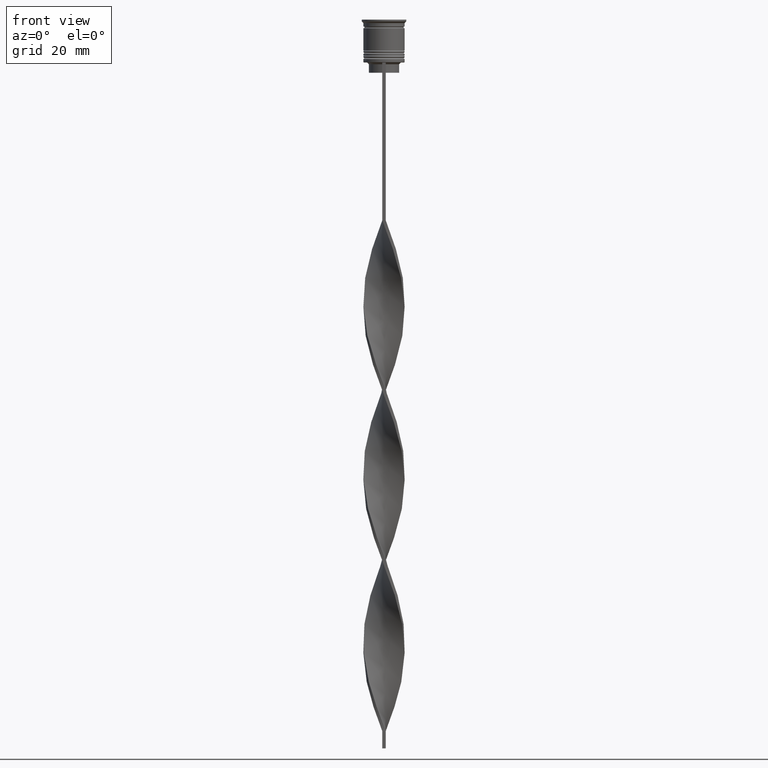
[diagram: clean part render]
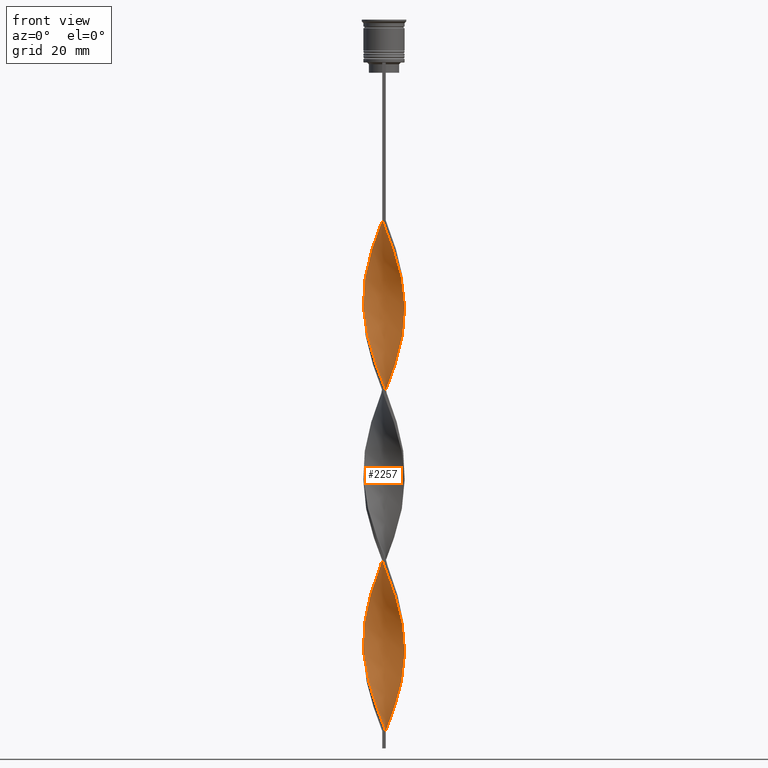
[diagram: same view with one face highlighted and labeled with its STEP entity id]
A machine part, front view. The second image highlights one B-rep face of the part: STEP entity #2257.
In plain terms, the highlighted face is a freeform B-spline surface patch.
Its self-contained STEP definition (entity closure, byte-faithful):
#17 = CARTESIAN_POINT ( 'NONE',  ( 6.015373881509670007, 0.6136281867224272490, -86.25490196078432348 ) ) ;
#31 = CARTESIAN_POINT ( 'NONE',  ( -4.114758515918087944, -4.430578386798787349, -194.3529411764705799 ) ) ;
#35 = CARTESIAN_POINT ( 'NONE',  ( 4.032016302638261607, 4.506007880724164139, -97.94117647058824616 ) ) ;
#53 = CARTESIAN_POINT ( 'NONE',  ( 2.236388528178716584, -5.617813528137047818, -165.1372549019608016 ) ) ;
#60 = CARTESIAN_POINT ( 'NONE',  ( -5.830837162583066835, -1.600812440396821801, -185.5882352941176237 ) ) ;
#76 = CARTESIAN_POINT ( 'NONE',  ( -1.055981877452178086, 5.953668176878986529, -59.96078431372549744 ) ) ;
#88 = CARTESIAN_POINT ( 'NONE',  ( -5.593848926018643475, 2.226848488981699070, -175.3627450980391984 ) ) ;
#102 = CARTESIAN_POINT ( 'NONE',  ( 1.593983656741372767, 5.805963839195126042, -204.5784313725490335 ) ) ;
#112 = CARTESIAN_POINT ( 'NONE',  ( -2.633686111825095377, 5.414212543332558525, -64.34313725490196134 ) ) ;
#118 = CARTESIAN_POINT ( 'NONE',  ( -3.135386787619623750, -5.170165585153852383, -150.5294117647058840 ) ) ;
#122 = CARTESIAN_POINT ( 'NONE',  ( 3.672669403269014143, -4.770901325147232974, -70.18627450980390847 ) ) ;
#123 = CARTESIAN_POINT ( 'NONE',  ( -6.025704593494046968, -0.5021420494578366922, -83.33333333333332860 ) ) ;
#137 = CARTESIAN_POINT ( 'NONE',  ( -6.025704593494046968, 0.5021420494578381355, -133.0000000000000000 ) ) ;
#144 = CARTESIAN_POINT ( 'NONE',  ( 2.733484409399328019, -5.364518895816363653, -67.26470588235292780 ) ) ;
#157 = CARTESIAN_POINT ( 'NONE',  ( -3.230580290619939898, -5.111224263495680376, -97.94117647058824616 ) ) ;
#162 = CARTESIAN_POINT ( 'NONE',  ( 5.089420681871065888, 3.216799204635418352, -93.55882352941176805 ) ) ;
#163 = CARTESIAN_POINT ( 'NONE',  ( -1.701213882420740120, -5.775454209519710780, -201.6568627450980387 ) ) ;
#169 = CARTESIAN_POINT ( 'NONE',  ( -0.4999999999999997780, 6.000000000000000000, -157.8333333333333144 ) ) ;
#176 = CARTESIAN_POINT ( 'NONE',  ( 5.634122364000872629, -2.122890762018906141, -178.2843137254901933 ) ) ;
#183 = CARTESIAN_POINT ( 'NONE',  ( -2.236388528178717472, -5.617813528137046930, -100.8627450980392126 ) ) ;
#190 = CARTESIAN_POINT ( 'NONE',  ( 4.411678320489673233, 4.097205681500676100, -195.8137254901960773 ) ) ;
#205 = CARTESIAN_POINT ( 'NONE',  ( -5.928270878038556013, -1.051477244927328192, -84.79411764705882604 ) ) ;
#209 = CARTESIAN_POINT ( 'NONE',  ( 1.701213882420740120, -5.775454209519710780, -163.6764705882352757 ) ) ;
#211 = CARTESIAN_POINT ( 'NONE',  ( -4.486786045491809816, -4.014816431915657624, -93.55882352941176805 ) ) ;
#218 = CARTESIAN_POINT ( 'NONE',  ( 4.114758515918086168, 4.430578386798788237, -144.6862745098039227 ) ) ;
#224 = CARTESIAN_POINT ( 'NONE',  ( 1.593983656741372767, 5.805963839195126042, -105.2450980392156765 ) ) ;
#238 = CARTESIAN_POINT ( 'NONE',  ( -2.131985436030568781, -5.658259501511265555, -153.4509803921568789 ) ) ;
#240 = CARTESIAN_POINT ( 'NONE',  ( 4.032016302638258942, -4.506007880724165027, -118.3921568627451109 ) ) ;
#266 = CARTESIAN_POINT ( 'NONE',  ( 4.791340338341086635, -3.688403482277189394, -121.3137254901960773 ) ) ;
#282 = CARTESIAN_POINT ( 'NONE',  ( 2.633686111825095377, 5.414212543332558525, -102.3235294117646959 ) ) ;
#284 = CARTESIAN_POINT ( 'NONE',  ( 5.928270878038556901, 1.051477244927326415, -134.4607843137254974 ) ) ;
#298 = CARTESIAN_POINT ( 'NONE',  ( 1.055981877452177642, 5.953668176878988305, -106.7058823529412024 ) ) ;
#323 = CARTESIAN_POINT ( 'NONE',  ( 0.6110105570574714262, -5.989713357011694939, -61.42156862745097357 ) ) ;
#338 = CARTESIAN_POINT ( 'NONE',  ( 5.593848926018643475, 2.226848488981698626, -90.63725490196078738 ) ) ;
#344 = CARTESIAN_POINT ( 'NONE',  ( -6.025704593494046968, -0.5021420494578366922, -182.6666666666666856 ) ) ;
#358 = CARTESIAN_POINT ( 'NONE',  ( 5.387501025401044252, 2.745194926993649975, -191.4313725490196134 ) ) ;
#363 = CARTESIAN_POINT ( 'NONE',  ( 3.135386787619625526, 5.170165585153850607, -100.8627450980392126 ) ) ;
#371 = VECTOR ( 'NONE', #3705, 1000.000000000000000 ) ;
#378 = CARTESIAN_POINT ( 'NONE',  ( -5.089420681871065000, 3.216799204635419240, -73.10784313725488914 ) ) ;
#386 = CARTESIAN_POINT ( 'NONE',  ( -0.4999999999999997780, -6.000000000000000000, -58.50000000000000000 ) ) ;
#387 = CARTESIAN_POINT ( 'NONE',  ( -4.791340338341087524, 3.688403482277190282, -170.9803921568627629 ) ) ;
#402 = CARTESIAN_POINT ( 'NONE',  ( -4.791340338341085747, -3.688403482277191170, -144.6862745098039227 ) ) ;
#420 = CARTESIAN_POINT ( 'NONE',  ( 2.131985436030567893, 5.658259501511265555, -203.1176470588235361 ) ) ;
#425 = CARTESIAN_POINT ( 'NONE',  ( 1.166039236662763656, -5.933094890902377294, -62.88235294117647101 ) ) ;
#438 = CARTESIAN_POINT ( 'NONE',  ( 3.135386787619625526, 5.170165585153850607, -200.1960784313725981 ) ) ;
#448 = CARTESIAN_POINT ( 'NONE',  ( 5.593848926018643475, 2.226848488981698626, -90.63725490196078738 ) ) ;
#449 = CARTESIAN_POINT ( 'NONE',  ( -5.634122364000872629, -2.122890762018907029, -87.71568627450979250 ) ) ;
#460 = CARTESIAN_POINT ( 'NONE',  ( 1.593983656741371657, -5.805963839195126042, -111.0882352941176379 ) ) ;
#464 = CARTESIAN_POINT ( 'NONE',  ( 2.236388528178716140, -5.617813528137046930, -165.1372549019608016 ) ) ;
#473 = CARTESIAN_POINT ( 'NONE',  ( 6.015373881509670007, -0.6136281867224248066, -130.0784313725490335 ) ) ;
#479 = CARTESIAN_POINT ( 'NONE',  ( 4.791340338341087524, 3.688403482277190282, -194.3529411764705799 ) ) ;
#488 = CARTESIAN_POINT ( 'NONE',  ( 4.858813575065529911, 3.599054477032529675, -141.7647058823529562 ) ) ;
#493 = CARTESIAN_POINT ( 'NONE',  ( -4.791340338341085747, -3.688403482277191170, -144.6862745098039227 ) ) ;
#509 = CARTESIAN_POINT ( 'NONE',  ( -5.800196826636242697, 1.708502050969749497, -77.49019607843138147 ) ) ;
#513 = CARTESIAN_POINT ( 'NONE',  ( 0.4999999999999995559, -2.000000000000000000, -207.5000000000000000 ) ) ;
#515 = CARTESIAN_POINT ( 'NONE',  ( 6.015373881509670895, 0.6136281867224271380, -185.5882352941176237 ) ) ;
#516 = CARTESIAN_POINT ( 'NONE',  ( 1.055981877452178752, -5.953668176878985641, -109.6274509803921404 ) ) ;
#518 = EDGE_CURVE ( 'NONE', #3681, #2878, #836, .T. ) ;
#524 = CARTESIAN_POINT ( 'NONE',  ( -5.593848926018643475, 2.226848488981699070, -175.3627450980391984 ) ) ;
#531 = CARTESIAN_POINT ( 'NONE',  ( 1.055981877452177864, 5.953668176878987417, -106.7058823529411882 ) ) ;
#543 = CARTESIAN_POINT ( 'NONE',  ( -6.025704593494046968, -0.5021420494578366922, -182.6666666666666572 ) ) ;
#549 = CARTESIAN_POINT ( 'NONE',  ( 0.05598187745217882844, -6.046331823121014359, -59.96078431372549744 ) ) ;
#572 = CARTESIAN_POINT ( 'NONE',  ( -0.4999999999999997780, -6.000000000000000000, -58.50000000000000000 ) ) ;
#573 = CARTESIAN_POINT ( 'NONE',  ( 0.4999999999999990563, -6.000000000000000000, -108.1666666666666572 ) ) ;
#584 = CARTESIAN_POINT ( 'NONE',  ( -2.733484409399328019, -5.364518895816363653, -198.7352941176470722 ) ) ;
#588 = CARTESIAN_POINT ( 'NONE',  ( -0.6110105570574700939, 5.989713357011694939, -111.0882352941176379 ) ) ;
#597 = CARTESIAN_POINT ( 'NONE',  ( -1.055981877452178308, 5.953668176878985641, -159.2941176470588118 ) ) ;
#608 = CARTESIAN_POINT ( 'NONE',  ( -3.672669403269014143, 4.770901325147232974, -119.8529411764705799 ) ) ;
#633 = CARTESIAN_POINT ( 'NONE',  ( 5.634122364000872629, -2.122890762018906141, -78.95098039215686470 ) ) ;
#649 = CARTESIAN_POINT ( 'NONE',  ( 3.672669403269014143, -4.770901325147232974, -169.5196078431372371 ) ) ;
#654 = CARTESIAN_POINT ( 'NONE',  ( 4.411678320489673233, 4.097205681500676100, -96.48039215686274872 ) ) ;
#668 = CARTESIAN_POINT ( 'NONE',  ( -4.791340338341087524, 3.688403482277190282, -71.64705882352943433 ) ) ;
#686 = CARTESIAN_POINT ( 'NONE',  ( 1.166039236662763656, -5.933094890902376406, -162.2156862745098351 ) ) ;
#695 = CARTESIAN_POINT ( 'NONE',  ( 3.230580290619939898, -5.111224263495680376, -68.72549019607842524 ) ) ;
#708 = CARTESIAN_POINT ( 'NONE',  ( 4.032016302638261607, 4.506007880724164139, -197.2745098039215463 ) ) ;
#712 = CARTESIAN_POINT ( 'NONE',  ( 4.858813575065529911, -3.599054477032529675, -74.56862745098038658 ) ) ;
#714 = CARTESIAN_POINT ( 'NONE',  ( 0.4999999999999990563, -6.000000000000000000, -207.5000000000000000 ) ) ;
#726 = EDGE_CURVE ( 'NONE', #1699, #2878, #2821, .T. ) ;
#729 = CARTESIAN_POINT ( 'NONE',  ( 5.830837162583068611, -1.600812440396821357, -179.7450980392157192 ) ) ;
#733 = CARTESIAN_POINT ( 'NONE',  ( 5.907785354072955464, 1.161065118846088096, -87.71568627450979250 ) ) ;
#741 = CARTESIAN_POINT ( 'NONE',  ( -0.4999999999999997780, 6.000000000000000888, -58.50000000000000000 ) ) ;
#745 = CARTESIAN_POINT ( 'NONE',  ( 0.05598187745217871047, 6.046331823121016136, -156.3725490196078454 ) ) ;
#754 = CARTESIAN_POINT ( 'NONE',  ( -6.025704593494046968, 0.5021420494578381355, -133.0000000000000000 ) ) ;
#768 = CARTESIAN_POINT ( 'NONE',  ( 5.148110570242104167, 3.122011780336761966, -140.3039215686274588 ) ) ;
#774 = CARTESIAN_POINT ( 'NONE',  ( 5.089420681871065888, 3.216799204635418352, -192.8921568627450824 ) ) ;
#775 = CARTESIAN_POINT ( 'NONE',  ( -0.05598187745217796107, -6.046331823121017024, -206.0392156862745026 ) ) ;
#780 = CARTESIAN_POINT ( 'NONE',  ( -5.593848926018643475, 2.226848488981699070, -76.02941176470586981 ) ) ;
#784 = CARTESIAN_POINT ( 'NONE',  ( -3.135386787619624638, 5.170165585153851495, -165.1372549019608016 ) ) ;
#789 = CARTESIAN_POINT ( 'NONE',  ( 1.166039236662763656, -5.933094890902377294, -162.2156862745098351 ) ) ;
#799 = CARTESIAN_POINT ( 'NONE',  ( -6.015373881509669118, 0.6136281867224266939, -80.41176470588234793 ) ) ;
#805 = CARTESIAN_POINT ( 'NONE',  ( -2.633686111825095821, -5.414212543332558525, -151.9901960784313530 ) ) ;
#816 = CARTESIAN_POINT ( 'NONE',  ( 5.148110570242104167, 3.122011780336761966, -140.3039215686274588 ) ) ;
#823 = CARTESIAN_POINT ( 'NONE',  ( 0.4999999999999990563, -6.000000000000000000, -108.1666666666666572 ) ) ;
#826 = CARTESIAN_POINT ( 'NONE',  ( -5.148110570242105943, 3.122011780336759745, -125.6960784313725412 ) ) ;
#833 = CARTESIAN_POINT ( 'NONE',  ( -5.387501025401044252, 2.745194926993649087, -74.56862745098038658 ) ) ;
#836 =( BOUNDED_CURVE ( )  B_SPLINE_CURVE ( 2, ( #741, #1360, #1283, #1584, #112, #1604, #2833, #2531, #1030, #3840, #1139, #833, #780, #3196, #1598, #2550, #3155, #123, #3726, #2869, #449, #2566, #3763, #2339, #211, #2036, #3893, #3575, #2314, #1726, #2952, #2075, #2617, #1111, #573, #516, #2358, #1710, #1169, #2632, #2660, #240, #3828, #266, #1130, #3257, #1457, #2375, #866, #3279, #1998, #2996, #284, #1474, #1187, #2397, #816, #3836, #873, #3286, #2002, #916, #2123, #1866, #3324, #3686, #1251, #1886, #3017, #597, #1554, #2807, #1803, #1534, #1233, #1518, #2741, #387, #2444, #3639, #88, #2146, #3349, #1277, #1849, #344, #2759, #60, #2465, #3667, #2504, #2167, #3369, #3099, #1297, #896, #1313, #2521, #163, #2230, #3432, #775, #714 ),
 .UNSPECIFIED., .F., .T. ) 
 B_SPLINE_CURVE_WITH_KNOTS ( ( 3, 2, 2, 2, 2, 2, 2, 2, 2, 2, 2, 2, 2, 2, 2, 2, 2, 2, 2, 2, 2, 2, 2, 2, 2, 2, 2, 2, 2, 2, 2, 2, 2, 2, 2, 2, 2, 2, 2, 2, 2, 2, 2, 2, 2, 2, 2, 2, 2, 2, 2, 3 ),
 ( 0.000000000000000000, 0.01470588235294117453, 0.02941176470588234906, 0.04411764705882353227, 0.05882352941176469813, 0.07352941176470588480, 0.08823529411764706454, 0.1029411764705882443, 0.1176470588235293963, 0.1323529411764705899, 0.1470588235294117696, 0.1617647058823529493, 0.1764705882352941291, 0.1911764705882352811, 0.2058823529411764885, 0.2205882352941176405, 0.2352941176470587925, 0.2500000000000000000, 0.2647058823529411797, 0.2794117647058823595, 0.2941176470588235392, 0.3088235294117647189, 0.3235294117647058987, 0.3382352941176470229, 0.3529411764705882582, 0.3676470588235294379, 0.3823529411764705621, 0.3970588235294117418, 0.4117647058823529771, 0.4264705882352941013, 0.4411764705882352811, 0.4558823529411764608, 0.4705882352941175850, 0.4852941176470588203, 0.5000000000000000000, 0.5147058823529411242, 0.5294117647058823595, 0.5441176470588234837, 0.5588235294117647189, 0.5735294117647058432, 0.5882352941176470784, 0.6029411764705882026, 0.6176470588235294379, 0.6323529411764705621, 0.6470588235294117974, 0.6617647058823529216, 0.6764705882352940458, 0.6911764705882351700, 0.7058823529411765163, 0.7205882352941176405, 0.7352941176470588758, 0.7500000000000000000 ),
 .UNSPECIFIED. ) 
 CURVE ( )  GEOMETRIC_REPRESENTATION_ITEM ( )  RATIONAL_B_SPLINE_CURVE ( ( 1.000000000000000000, 0.9957341762950344677, 1.000000000000000000, 0.9957341762950344677, 1.000000000000000000, 0.9957341762950344677, 1.000000000000000000, 0.9957341762950344677, 1.000000000000000000, 0.9957341762950344677, 1.000000000000000000, 0.9957341762950344677, 1.000000000000000000, 0.9957341762950344677, 1.000000000000000000, 0.9957341762950344677, 1.000000000000000000, 0.9957341762950344677, 1.000000000000000000, 0.9957341762950344677, 1.000000000000000000, 0.9957341762950344677, 1.000000000000000000, 0.9957341762950344677, 1.000000000000000000, 0.9957341762950344677, 1.000000000000000000, 0.9957341762950344677, 1.000000000000000000, 0.9957341762950344677, 1.000000000000000000, 0.9957341762950344677, 1.000000000000000000, 0.9957341762950344677, 1.000000000000000000, 0.9957341762950344677, 1.000000000000000000, 0.9957341762950344677, 1.000000000000000000, 0.9957341762950344677, 1.000000000000000000, 0.9957341762950344677, 1.000000000000000000, 0.9957341762950344677, 1.000000000000000000, 0.9957341762950344677, 1.000000000000000000, 0.9957341762950344677, 1.000000000000000000, 0.9957341762950344677, 1.000000000000000000, 0.9957341762950344677, 1.000000000000000000, 0.9957341762950344677, 1.000000000000000000, 0.9957341762950344677, 1.000000000000000000, 0.9957341762950344677, 1.000000000000000000, 0.9957341762950344677, 1.000000000000000000, 0.9957341762950344677, 1.000000000000000000, 0.9957341762950344677, 1.000000000000000000, 0.9957341762950344677, 1.000000000000000000, 0.9957341762950344677, 1.000000000000000000, 0.9957341762950344677, 1.000000000000000000, 0.9957341762950344677, 1.000000000000000000, 0.9957341762950344677, 1.000000000000000000, 0.9957341762950344677, 1.000000000000000000, 0.9957341762950344677, 1.000000000000000000, 0.9957341762950344677, 1.000000000000000000, 0.9957341762950344677, 1.000000000000000000, 0.9957341762950344677, 1.000000000000000000, 0.9957341762950344677, 1.000000000000000000, 0.9957341762950344677, 1.000000000000000000, 0.9957341762950344677, 1.000000000000000000, 0.9957341762950344677, 1.000000000000000000, 0.9957341762950344677, 1.000000000000000000, 0.9957341762950344677, 1.000000000000000000, 0.9957341762950344677, 1.000000000000000000, 0.9957341762950344677, 1.000000000000000000, 0.9957341762950344677, 1.000000000000000000 ) ) 
 REPRESENTATION_ITEM ( '' )  );
#840 = CARTESIAN_POINT ( 'NONE',  ( -0.05598187745217796107, -6.046331823121016136, -206.0392156862745026 ) ) ;
#846 = CARTESIAN_POINT ( 'NONE',  ( -2.733484409399328463, 5.364518895816362765, -116.9313725490195992 ) ) ;
#864 = CARTESIAN_POINT ( 'NONE',  ( 5.089420681871065888, 3.216799204635418352, -93.55882352941176805 ) ) ;
#866 = CARTESIAN_POINT ( 'NONE',  ( 5.907785354072955464, -1.161065118846089428, -128.6176470588235361 ) ) ;
#873 = CARTESIAN_POINT ( 'NONE',  ( 4.486786045491810704, 4.014816431915656736, -143.2254901960784537 ) ) ;
#889 = CARTESIAN_POINT ( 'NONE',  ( 1.055981877452177864, 5.953668176878987417, -206.0392156862745026 ) ) ;
#896 = CARTESIAN_POINT ( 'NONE',  ( -3.230580290619939898, -5.111224263495680376, -197.2745098039215463 ) ) ;
#916 = CARTESIAN_POINT ( 'NONE',  ( 3.230580290619941231, 5.111224263495680376, -147.6078431372548891 ) ) ;
#917 = ORIENTED_EDGE ( 'NONE', *, *, #1940, .T. ) ;
#924 = CARTESIAN_POINT ( 'NONE',  ( -1.166039236662764988, -5.933094890902376406, -203.1176470588235361 ) ) ;
#929 = CARTESIAN_POINT ( 'NONE',  ( -5.634122364000872629, 2.122890762018908362, -128.6176470588235361 ) ) ;
#956 = CARTESIAN_POINT ( 'NONE',  ( -2.633686111825095377, 5.414212543332558525, -64.34313725490196134 ) ) ;
#976 = CARTESIAN_POINT ( 'NONE',  ( 4.411678320489673233, 4.097205681500676100, -195.8137254901960773 ) ) ;
#991 = CARTESIAN_POINT ( 'NONE',  ( -5.928270878038556013, 1.051477244927328636, -131.5392156862745310 ) ) ;
#1015 = CARTESIAN_POINT ( 'NONE',  ( -5.089420681871066776, -3.216799204635417464, -143.2254901960784537 ) ) ;
#1030 = CARTESIAN_POINT ( 'NONE',  ( -4.411678320489672345, 4.097205681500676988, -70.18627450980390847 ) ) ;
#1038 = CARTESIAN_POINT ( 'NONE',  ( -3.583701545128944232, -4.838086732939006041, -149.0686274509803866 ) ) ;
#1044 = CARTESIAN_POINT ( 'NONE',  ( 5.148110570242105055, -3.122011780336760634, -76.02941176470586981 ) ) ;
#1053 = CARTESIAN_POINT ( 'NONE',  ( 4.486786045491810704, 4.014816431915656736, -143.2254901960784537 ) ) ;
#1059 = CARTESIAN_POINT ( 'NONE',  ( 2.131985436030567893, 5.658259501511266443, -103.7843137254901791 ) ) ;
#1068 = CARTESIAN_POINT ( 'NONE',  ( 5.437407565418680200, 2.644969083640990259, -138.8431372549019045 ) ) ;
#1077 = CARTESIAN_POINT ( 'NONE',  ( -2.733484409399328463, 5.364518895816362765, -116.9313725490195992 ) ) ;
#1089 = CARTESIAN_POINT ( 'NONE',  ( 2.131985436030567005, -5.658259501511265555, -112.5490196078431495 ) ) ;
#1094 = CARTESIAN_POINT ( 'NONE',  ( -1.593983656741371213, -5.805963839195126042, -154.9117647058823479 ) ) ;
#1104 = CARTESIAN_POINT ( 'NONE',  ( 5.089420681871065000, -3.216799204635420129, -122.7745098039215605 ) ) ;
#1109 = CARTESIAN_POINT ( 'NONE',  ( 5.928270878038556013, -1.051477244927329080, -181.2058823529411598 ) ) ;
#1111 = CARTESIAN_POINT ( 'NONE',  ( -0.05598187745217796107, -6.046331823121017024, -106.7058823529411882 ) ) ;
#1120 = CARTESIAN_POINT ( 'NONE',  ( -6.020539237501858487, 0.05574306863229507719, -81.87254901960783116 ) ) ;
#1127 = CARTESIAN_POINT ( 'NONE',  ( -5.089420681871066776, -3.216799204635417464, -143.2254901960784537 ) ) ;
#1130 = CARTESIAN_POINT ( 'NONE',  ( 5.089420681871065000, -3.216799204635420129, -122.7745098039215605 ) ) ;
#1139 = CARTESIAN_POINT ( 'NONE',  ( -5.089420681871065000, 3.216799204635419240, -73.10784313725488914 ) ) ;
#1146 = CARTESIAN_POINT ( 'NONE',  ( -5.089420681871065000, 3.216799204635419240, -172.4411764705882035 ) ) ;
#1151 = CARTESIAN_POINT ( 'NONE',  ( 1.166039236662763656, -5.933094890902376406, -62.88235294117647811 ) ) ;
#1162 = CARTESIAN_POINT ( 'NONE',  ( -4.791340338341087524, 3.688403482277190282, -170.9803921568627629 ) ) ;
#1166 = CARTESIAN_POINT ( 'NONE',  ( 2.633686111825095377, 5.414212543332558525, -201.6568627450980387 ) ) ;
#1169 = CARTESIAN_POINT ( 'NONE',  ( 2.633686111825096265, -5.414212543332558525, -114.0098039215686185 ) ) ;
#1183 = CARTESIAN_POINT ( 'NONE',  ( 2.733484409399328019, -5.364518895816363653, -67.26470588235292780 ) ) ;
#1187 = CARTESIAN_POINT ( 'NONE',  ( 5.634122364000872629, 2.122890762018906141, -137.3823529411764639 ) ) ;
#1209 = CARTESIAN_POINT ( 'NONE',  ( -1.701213882420741008, 5.775454209519710780, -114.0098039215686185 ) ) ;
#1222 = CARTESIAN_POINT ( 'NONE',  ( -4.858813575065529911, -3.599054477032530563, -191.4313725490196134 ) ) ;
#1227 = CARTESIAN_POINT ( 'NONE',  ( -4.486786045491808927, 4.014816431915658512, -122.7745098039215605 ) ) ;
#1233 = CARTESIAN_POINT ( 'NONE',  ( -3.583701545128941568, 4.838086732939006929, -166.5980392156862706 ) ) ;
#1244 = CARTESIAN_POINT ( 'NONE',  ( 4.486786045491808927, -4.014816431915657624, -172.4411764705882035 ) ) ;
#1251 = CARTESIAN_POINT ( 'NONE',  ( 0.6110105570574696499, 5.989713357011694939, -154.9117647058823479 ) ) ;
#1269 = CARTESIAN_POINT ( 'NONE',  ( -3.135386787619624638, 5.170165585153851495, -65.80392156862747299 ) ) ;
#1276 = CARTESIAN_POINT ( 'NONE',  ( 6.025704593494046968, -0.5021420494578373583, -83.33333333333332860 ) ) ;
#1277 = CARTESIAN_POINT ( 'NONE',  ( -6.015373881509670007, 0.6136281867224266939, -179.7450980392157476 ) ) ;
#1283 = CARTESIAN_POINT ( 'NONE',  ( -1.593983656741372767, 5.805963839195126042, -61.42156862745097357 ) ) ;
#1291 = CARTESIAN_POINT ( 'NONE',  ( 5.148110570242105055, -3.122011780336760634, -175.3627450980391984 ) ) ;
#1296 = CARTESIAN_POINT ( 'NONE',  ( 2.236388528178716140, -5.617813528137046930, -65.80392156862745878 ) ) ;
#1297 = CARTESIAN_POINT ( 'NONE',  ( -3.672669403269015032, -4.770901325147232086, -195.8137254901960773 ) ) ;
#1308 = CARTESIAN_POINT ( 'NONE',  ( 0.05598187745217882844, -6.046331823121014359, -159.2941176470588118 ) ) ;
#1313 = CARTESIAN_POINT ( 'NONE',  ( -2.733484409399328019, -5.364518895816363653, -198.7352941176470722 ) ) ;
#1331 = CARTESIAN_POINT ( 'NONE',  ( 4.791340338341087524, 3.688403482277190282, -194.3529411764705799 ) ) ;
#1338 = CARTESIAN_POINT ( 'NONE',  ( 0.6110105570574714262, -5.989713357011694939, -61.42156862745097357 ) ) ;
#1348 = CARTESIAN_POINT ( 'NONE',  ( -2.733484409399328019, -5.364518895816363653, -99.40196078431372939 ) ) ;
#1360 = CARTESIAN_POINT ( 'NONE',  ( -1.055981877452178308, 5.953668176878985641, -59.96078431372549034 ) ) ;
#1363 = CARTESIAN_POINT ( 'NONE',  ( 3.135386787619624194, -5.170165585153852383, -115.4705882352940876 ) ) ;
#1367 = CARTESIAN_POINT ( 'NONE',  ( -5.800196826636242697, -1.708502050969747277, -138.8431372549019329 ) ) ;
#1377 = CARTESIAN_POINT ( 'NONE',  ( 6.025704593494046968, 0.5021420494578359150, -133.0000000000000000 ) ) ;
#1384 = CARTESIAN_POINT ( 'NONE',  ( -5.928270878038556013, 1.051477244927328636, -131.5392156862745310 ) ) ;
#1392 = CARTESIAN_POINT ( 'NONE',  ( 1.055981877452178530, -5.953668176878986529, -109.6274509803921546 ) ) ;
#1398 = CARTESIAN_POINT ( 'NONE',  ( -4.032016302638261607, -4.506007880724164139, -147.6078431372548891 ) ) ;
#1408 = CARTESIAN_POINT ( 'NONE',  ( 5.800196826636242697, -1.708502050969749053, -127.1568627450980102 ) ) ;
#1411 = CARTESIAN_POINT ( 'NONE',  ( 0.4999999999999990563, -6.000000000000000000, -207.5000000000000000 ) ) ;
#1413 = CARTESIAN_POINT ( 'NONE',  ( 5.593848926018643475, 2.226848488981698626, -189.9705882352941160 ) ) ;
#1432 = CARTESIAN_POINT ( 'NONE',  ( -0.4999999999999997780, -6.000000000000000000, -157.8333333333333144 ) ) ;
#1453 = FACE_OUTER_BOUND ( 'NONE', #3673, .T. ) ;
#1457 = CARTESIAN_POINT ( 'NONE',  ( 5.593848926018644363, -2.226848488981697294, -125.6960784313725412 ) ) ;
#1471 = CARTESIAN_POINT ( 'NONE',  ( 5.437407565418680200, -2.644969083640992480, -77.49019607843138147 ) ) ;
#1474 = CARTESIAN_POINT ( 'NONE',  ( 5.830837162583066835, 1.600812440396822467, -135.9215686274509665 ) ) ;
#1491 = CARTESIAN_POINT ( 'NONE',  ( -1.166039236662763656, 5.933094890902376406, -112.5490196078431495 ) ) ;
#1507 = CARTESIAN_POINT ( 'NONE',  ( -4.411678320489672345, 4.097205681500676988, -169.5196078431372371 ) ) ;
#1511 = CARTESIAN_POINT ( 'NONE',  ( 6.020539237501858487, 0.05574306863229420983, -84.79411764705882604 ) ) ;
#1518 = CARTESIAN_POINT ( 'NONE',  ( -4.032016302638260719, 4.506007880724164139, -168.0588235294117680 ) ) ;
#1528 = CARTESIAN_POINT ( 'NONE',  ( 1.701213882420740120, -5.775454209519710780, -64.34313725490196134 ) ) ;
#1534 = CARTESIAN_POINT ( 'NONE',  ( -3.135386787619624638, 5.170165585153851495, -165.1372549019608016 ) ) ;
#1549 = CARTESIAN_POINT ( 'NONE',  ( 6.015373881509670007, 0.6136281867224272490, -185.5882352941176237 ) ) ;
#1553 = CARTESIAN_POINT ( 'NONE',  ( 2.633686111825095377, 5.414212543332558525, -102.3235294117646959 ) ) ;
#1554 = CARTESIAN_POINT ( 'NONE',  ( -1.593983656741372767, 5.805963839195126042, -160.7549019607842808 ) ) ;
#1573 = CARTESIAN_POINT ( 'NONE',  ( -5.593848926018642587, -2.226848488981700402, -140.3039215686274588 ) ) ;
#1579 = CARTESIAN_POINT ( 'NONE',  ( 0.05598187745217882844, -6.046331823121015248, -59.96078431372549034 ) ) ;
#1584 = CARTESIAN_POINT ( 'NONE',  ( -2.131985436030567005, 5.658259501511266443, -62.88235294117647101 ) ) ;
#1592 = CARTESIAN_POINT ( 'NONE',  ( 5.800196826636242697, 1.708502050969748609, -188.5098039215686185 ) ) ;
#1598 = CARTESIAN_POINT ( 'NONE',  ( -5.907785354072955464, 1.161065118846087207, -78.95098039215686470 ) ) ;
#1604 = CARTESIAN_POINT ( 'NONE',  ( -3.135386787619624638, 5.170165585153851495, -65.80392156862745878 ) ) ;
#1612 = CARTESIAN_POINT ( 'NONE',  ( -2.633686111825095821, -5.414212543332558525, -151.9901960784313530 ) ) ;
#1616 = CARTESIAN_POINT ( 'NONE',  ( 5.634122364000872629, -2.122890762018906141, -78.95098039215686470 ) ) ;
#1632 = CARTESIAN_POINT ( 'NONE',  ( -5.907785354072955464, 1.161065118846087207, -78.95098039215686470 ) ) ;
#1640 = CARTESIAN_POINT ( 'NONE',  ( 6.020539237501858487, 0.05574306863229420983, -84.79411764705882604 ) ) ;
#1649 = CARTESIAN_POINT ( 'NONE',  ( -4.858813575065529911, -3.599054477032530563, -92.09803921568628482 ) ) ;
#1654 = CARTESIAN_POINT ( 'NONE',  ( 3.230580290619939898, -5.111224263495680376, -168.0588235294117680 ) ) ;
#1663 = CARTESIAN_POINT ( 'NONE',  ( 5.928270878038556901, 1.051477244927326415, -134.4607843137254974 ) ) ;
#1669 = CARTESIAN_POINT ( 'NONE',  ( 5.148110570242105055, -3.122011780336760634, -175.3627450980391984 ) ) ;
#1683 = CARTESIAN_POINT ( 'NONE',  ( -3.583701545128941568, 4.838086732939006929, -166.5980392156862706 ) ) ;
#1691 = CARTESIAN_POINT ( 'NONE',  ( -1.166039236662763656, 5.933094890902377294, -112.5490196078431495 ) ) ;
#1699 = VERTEX_POINT ( 'NONE', #2703 ) ;
#1703 = CARTESIAN_POINT ( 'NONE',  ( -6.025704593494046968, -0.5021420494578366922, -83.33333333333332860 ) ) ;
#1708 = CARTESIAN_POINT ( 'NONE',  ( -1.701213882420741008, 5.775454209519710780, -114.0098039215686185 ) ) ;
#1710 = CARTESIAN_POINT ( 'NONE',  ( 2.131985436030567005, -5.658259501511266443, -112.5490196078431495 ) ) ;
#1722 = CARTESIAN_POINT ( 'NONE',  ( -3.230580290619938122, 5.111224263495681264, -118.3921568627451109 ) ) ;
#1726 = CARTESIAN_POINT ( 'NONE',  ( -2.236388528178717028, -5.617813528137046042, -100.8627450980392126 ) ) ;
#1768 = CARTESIAN_POINT ( 'NONE',  ( -6.015373881509669118, 0.6136281867224266939, -179.7450980392157192 ) ) ;
#1775 = CARTESIAN_POINT ( 'NONE',  ( 4.411678320489673233, 4.097205681500676100, -96.48039215686274872 ) ) ;
#1779 = CARTESIAN_POINT ( 'NONE',  ( 0.4999999999999990563, -6.000000000000000000, -207.5000000000000000 ) ) ;
#1794 = CARTESIAN_POINT ( 'NONE',  ( 3.230580290619939898, -5.111224263495680376, -68.72549019607842524 ) ) ;
#1803 = CARTESIAN_POINT ( 'NONE',  ( -2.633686111825095377, 5.414212543332558525, -163.6764705882352757 ) ) ;
#1814 = CARTESIAN_POINT ( 'NONE',  ( 2.131985436030567893, 5.658259501511266443, -203.1176470588235361 ) ) ;
#1843 = CARTESIAN_POINT ( 'NONE',  ( 5.830837162583068611, -1.600812440396821357, -80.41176470588234793 ) ) ;
#1849 = CARTESIAN_POINT ( 'NONE',  ( -6.020539237501858487, 0.05574306863229507719, -181.2058823529411598 ) ) ;
#1861 = CARTESIAN_POINT ( 'NONE',  ( -5.800196826636242697, -1.708502050969747277, -138.8431372549019045 ) ) ;
#1865 = CARTESIAN_POINT ( 'NONE',  ( 4.032016302638260719, 4.506007880724164139, -97.94117647058824616 ) ) ;
#1866 = CARTESIAN_POINT ( 'NONE',  ( 2.236388528178715251, 5.617813528137046042, -150.5294117647058840 ) ) ;
#1870 = ORIENTED_EDGE ( 'NONE', *, *, #2237, .F. ) ;
#1880 = CARTESIAN_POINT ( 'NONE',  ( -2.131985436030567005, 5.658259501511265555, -62.88235294117647811 ) ) ;
#1886 = CARTESIAN_POINT ( 'NONE',  ( 0.05598187745217871047, 6.046331823121017024, -156.3725490196078454 ) ) ;
#1903 = CARTESIAN_POINT ( 'NONE',  ( 5.634122364000872629, -2.122890762018906141, -178.2843137254901933 ) ) ;
#1922 = CARTESIAN_POINT ( 'NONE',  ( -1.593983656741371213, -5.805963839195126042, -154.9117647058823479 ) ) ;
#1940 = EDGE_CURVE ( 'NONE', #2620, #3681, #3453, .T. ) ;
#1941 = CARTESIAN_POINT ( 'NONE',  ( 6.025704593494046968, -0.5021420494578373583, -182.6666666666666572 ) ) ;
#1960 = CARTESIAN_POINT ( 'NONE',  ( -3.672669403269015032, -4.770901325147232086, -96.48039215686274872 ) ) ;
#1967 = CARTESIAN_POINT ( 'NONE',  ( 0.6110105570574714262, -5.989713357011694939, -160.7549019607842808 ) ) ;
#1977 = CARTESIAN_POINT ( 'NONE',  ( -1.593983656741372767, 5.805963839195126042, -160.7549019607842808 ) ) ;
#1981 = CARTESIAN_POINT ( 'NONE',  ( -5.634122364000872629, 2.122890762018908362, -128.6176470588235361 ) ) ;
#1990 = CARTESIAN_POINT ( 'NONE',  ( 6.020539237501858487, -0.05574306863229442494, -131.5392156862745310 ) ) ;
#1996 = CARTESIAN_POINT ( 'NONE',  ( -0.6110105570574700939, 5.989713357011694939, -111.0882352941176379 ) ) ;
#1998 = CARTESIAN_POINT ( 'NONE',  ( 6.020539237501858487, -0.05574306863229442494, -131.5392156862745310 ) ) ;
#2002 = CARTESIAN_POINT ( 'NONE',  ( 3.672669403269013255, 4.770901325147232974, -146.1470588235294201 ) ) ;
#2012 = CARTESIAN_POINT ( 'NONE',  ( 5.907785354072955464, -1.161065118846089428, -128.6176470588235361 ) ) ;
#2017 = CARTESIAN_POINT ( 'NONE',  ( 0.5000000000000000000, 2.000000000000000000, -207.5000000000000000 ) ) ;
#2021 = CARTESIAN_POINT ( 'NONE',  ( 2.733484409399328019, -5.364518895816363653, -166.5980392156862706 ) ) ;
#2029 = CARTESIAN_POINT ( 'NONE',  ( 5.593848926018644363, -2.226848488981697294, -125.6960784313725412 ) ) ;
#2034 = CARTESIAN_POINT ( 'NONE',  ( -4.411678320489671457, -4.097205681500676988, -146.1470588235294201 ) ) ;
#2036 = CARTESIAN_POINT ( 'NONE',  ( -4.114758515918087944, -4.430578386798787349, -95.01960784313726549 ) ) ;
#2048 = CARTESIAN_POINT ( 'NONE',  ( -1.701213882420740120, -5.775454209519710780, -201.6568627450980387 ) ) ;
#2049 =( BOUNDED_CURVE ( )  B_SPLINE_CURVE ( 2, ( #386, #1579, #1338, #425, #2825, #1296, #144, #695, #122, #3725, #3431, #712, #1044, #2166, #1616, #2845, #2249, #1276, #1640, #3450, #733, #3152, #448, #2868, #162, #3368, #654, #1865, #3079, #363, #1553, #1059, #224, #531, #3827, #3514, #1996, #1691, #1708, #2264, #1077, #1722, #2918, #2659, #3467, #3499, #826, #3487, #1981, #2615, #1384, #754, #2598, #2949, #2631, #1367, #3796, #3206, #1127, #493, #2034, #1398, #2335, #3174, #805, #238, #1094, #3190, #1432, #3238, #1967, #789, #209, #464, #2021, #1654, #2884, #3813, #2296, #2281, #1669, #2896, #176, #3227, #1109, #3539, #2579, #515, #2312, #2932, #1413, #3776, #774, #479, #190, #3030, #2115, #3595, #1166, #1814, #3891, #889, #3855 ),
 .UNSPECIFIED., .F., .T. ) 
 B_SPLINE_CURVE_WITH_KNOTS ( ( 3, 2, 2, 2, 2, 2, 2, 2, 2, 2, 2, 2, 2, 2, 2, 2, 2, 2, 2, 2, 2, 2, 2, 2, 2, 2, 2, 2, 2, 2, 2, 2, 2, 2, 2, 2, 2, 2, 2, 2, 2, 2, 2, 2, 2, 2, 2, 2, 2, 2, 2, 3 ),
 ( 0.000000000000000000, 0.01470588235294117453, 0.02941176470588234906, 0.04411764705882353227, 0.05882352941176469813, 0.07352941176470588480, 0.08823529411764706454, 0.1029411764705882443, 0.1176470588235293963, 0.1323529411764705899, 0.1470588235294117696, 0.1617647058823529493, 0.1764705882352941291, 0.1911764705882352811, 0.2058823529411764885, 0.2205882352941176405, 0.2352941176470587925, 0.2500000000000000000, 0.2647058823529411797, 0.2794117647058823595, 0.2941176470588235392, 0.3088235294117647189, 0.3235294117647058987, 0.3382352941176470229, 0.3529411764705882582, 0.3676470588235294379, 0.3823529411764705621, 0.3970588235294117418, 0.4117647058823529771, 0.4264705882352941013, 0.4411764705882352811, 0.4558823529411764608, 0.4705882352941175850, 0.4852941176470588203, 0.5000000000000000000, 0.5147058823529411242, 0.5294117647058823595, 0.5441176470588234837, 0.5588235294117647189, 0.5735294117647058432, 0.5882352941176470784, 0.6029411764705882026, 0.6176470588235294379, 0.6323529411764705621, 0.6470588235294117974, 0.6617647058823529216, 0.6764705882352940458, 0.6911764705882351700, 0.7058823529411765163, 0.7205882352941176405, 0.7352941176470588758, 0.7500000000000000000 ),
 .UNSPECIFIED. ) 
 CURVE ( )  GEOMETRIC_REPRESENTATION_ITEM ( )  RATIONAL_B_SPLINE_CURVE ( ( 1.000000000000000000, 0.9957341762950344677, 1.000000000000000000, 0.9957341762950344677, 1.000000000000000000, 0.9957341762950344677, 1.000000000000000000, 0.9957341762950344677, 1.000000000000000000, 0.9957341762950344677, 1.000000000000000000, 0.9957341762950344677, 1.000000000000000000, 0.9957341762950344677, 1.000000000000000000, 0.9957341762950344677, 1.000000000000000000, 0.9957341762950344677, 1.000000000000000000, 0.9957341762950344677, 1.000000000000000000, 0.9957341762950344677, 1.000000000000000000, 0.9957341762950344677, 1.000000000000000000, 0.9957341762950344677, 1.000000000000000000, 0.9957341762950344677, 1.000000000000000000, 0.9957341762950344677, 1.000000000000000000, 0.9957341762950344677, 1.000000000000000000, 0.9957341762950344677, 1.000000000000000000, 0.9957341762950344677, 1.000000000000000000, 0.9957341762950344677, 1.000000000000000000, 0.9957341762950344677, 1.000000000000000000, 0.9957341762950344677, 1.000000000000000000, 0.9957341762950344677, 1.000000000000000000, 0.9957341762950344677, 1.000000000000000000, 0.9957341762950344677, 1.000000000000000000, 0.9957341762950344677, 1.000000000000000000, 0.9957341762950344677, 1.000000000000000000, 0.9957341762950344677, 1.000000000000000000, 0.9957341762950344677, 1.000000000000000000, 0.9957341762950344677, 1.000000000000000000, 0.9957341762950344677, 1.000000000000000000, 0.9957341762950344677, 1.000000000000000000, 0.9957341762950344677, 1.000000000000000000, 0.9957341762950344677, 1.000000000000000000, 0.9957341762950344677, 1.000000000000000000, 0.9957341762950344677, 1.000000000000000000, 0.9957341762950344677, 1.000000000000000000, 0.9957341762950344677, 1.000000000000000000, 0.9957341762950344677, 1.000000000000000000, 0.9957341762950344677, 1.000000000000000000, 0.9957341762950344677, 1.000000000000000000, 0.9957341762950344677, 1.000000000000000000, 0.9957341762950344677, 1.000000000000000000, 0.9957341762950344677, 1.000000000000000000, 0.9957341762950344677, 1.000000000000000000, 0.9957341762950344677, 1.000000000000000000, 0.9957341762950344677, 1.000000000000000000, 0.9957341762950344677, 1.000000000000000000, 0.9957341762950344677, 1.000000000000000000, 0.9957341762950344677, 1.000000000000000000, 0.9957341762950344677, 1.000000000000000000, 0.9957341762950344677, 1.000000000000000000 ) ) 
 REPRESENTATION_ITEM ( '' )  );
#2055 = CARTESIAN_POINT ( 'NONE',  ( -5.148110570242105943, 3.122011780336759745, -125.6960784313725412 ) ) ;
#2065 = CARTESIAN_POINT ( 'NONE',  ( -5.148110570242105055, -3.122011780336760189, -189.9705882352941160 ) ) ;
#2070 = CARTESIAN_POINT ( 'NONE',  ( 4.791340338341087524, 3.688403482277190282, -95.01960784313725128 ) ) ;
#2075 = CARTESIAN_POINT ( 'NONE',  ( -1.166039236662764988, -5.933094890902377294, -103.7843137254901791 ) ) ;
#2096 = CARTESIAN_POINT ( 'NONE',  ( 5.148110570242105055, -3.122011780336760634, -76.02941176470586981 ) ) ;
#2110 = CARTESIAN_POINT ( 'NONE',  ( -3.230580290619939898, -5.111224263495680376, -197.2745098039215463 ) ) ;
#2115 = CARTESIAN_POINT ( 'NONE',  ( 3.583701545128941568, 4.838086732939006929, -198.7352941176470722 ) ) ;
#2123 = CARTESIAN_POINT ( 'NONE',  ( 2.733484409399330239, 5.364518895816361876, -149.0686274509803866 ) ) ;
#2132 = CARTESIAN_POINT ( 'NONE',  ( -5.800196826636242697, 1.708502050969749497, -176.8235294117647243 ) ) ;
#2136 = CARTESIAN_POINT ( 'NONE',  ( 4.858813575065529911, -3.599054477032529675, -74.56862745098038658 ) ) ;
#2146 = CARTESIAN_POINT ( 'NONE',  ( -5.800196826636242697, 1.708502050969749497, -176.8235294117647243 ) ) ;
#2161 = CARTESIAN_POINT ( 'NONE',  ( -4.032016302638261607, 4.506007880724164139, -68.72549019607842524 ) ) ;
#2166 = CARTESIAN_POINT ( 'NONE',  ( 5.437407565418680200, -2.644969083640992480, -77.49019607843136725 ) ) ;
#2167 = CARTESIAN_POINT ( 'NONE',  ( -4.858813575065529911, -3.599054477032530563, -191.4313725490196134 ) ) ;
#2183 = CARTESIAN_POINT ( 'NONE',  ( -1.593983656741372767, 5.805963839195126042, -61.42156862745097357 ) ) ;
#2191 = CARTESIAN_POINT ( 'NONE',  ( -0.4999999999999997780, -6.000000000000000000, -58.50000000000000000 ) ) ;
#2201 = CARTESIAN_POINT ( 'NONE',  ( -4.032016302638262495, -4.506007880724164139, -147.6078431372548891 ) ) ;
#2224 = CARTESIAN_POINT ( 'NONE',  ( 5.928270878038556013, -1.051477244927329080, -181.2058823529411598 ) ) ;
#2230 = CARTESIAN_POINT ( 'NONE',  ( -1.166039236662764988, -5.933094890902377294, -203.1176470588235361 ) ) ;
#2237 = EDGE_CURVE ( 'NONE', #2620, #1699, #2049, .T. ) ;
#2244 = CARTESIAN_POINT ( 'NONE',  ( -1.055981877452178308, -5.953668176878988305, -156.3725490196078454 ) ) ;
#2249 = CARTESIAN_POINT ( 'NONE',  ( 5.928270878038556013, -1.051477244927329080, -81.87254901960783116 ) ) ;
#2257 = ADVANCED_FACE ( 'NONE', ( #1453 ), #3619, .T. ) ;
#2260 = CARTESIAN_POINT ( 'NONE',  ( 1.701213882420740564, 5.775454209519710780, -151.9901960784313530 ) ) ;
#2264 = CARTESIAN_POINT ( 'NONE',  ( -2.236388528178715696, 5.617813528137046042, -115.4705882352941018 ) ) ;
#2275 = CARTESIAN_POINT ( 'NONE',  ( 2.733484409399330239, 5.364518895816361876, -149.0686274509803866 ) ) ;
#2281 = CARTESIAN_POINT ( 'NONE',  ( 4.858813575065529911, -3.599054477032529675, -173.9019607843137294 ) ) ;
#2292 = CARTESIAN_POINT ( 'NONE',  ( -5.634122364000872629, -2.122890762018907029, -87.71568627450979250 ) ) ;
#2296 = CARTESIAN_POINT ( 'NONE',  ( 4.486786045491808927, -4.014816431915657624, -172.4411764705882035 ) ) ;
#2307 = CARTESIAN_POINT ( 'NONE',  ( -5.437407565418680200, -2.644969083640991592, -89.17647058823527573 ) ) ;
#2312 = CARTESIAN_POINT ( 'NONE',  ( 5.907785354072955464, 1.161065118846088096, -187.0490196078431211 ) ) ;
#2314 = CARTESIAN_POINT ( 'NONE',  ( -2.733484409399328019, -5.364518895816363653, -99.40196078431372939 ) ) ;
#2324 = CARTESIAN_POINT ( 'NONE',  ( -1.701213882420740120, -5.775454209519710780, -102.3235294117646959 ) ) ;
#2335 = CARTESIAN_POINT ( 'NONE',  ( -3.583701545128944232, -4.838086732939006041, -149.0686274509803866 ) ) ;
#2339 = CARTESIAN_POINT ( 'NONE',  ( -4.858813575065529911, -3.599054477032530563, -92.09803921568628482 ) ) ;
#2350 = CARTESIAN_POINT ( 'NONE',  ( -5.928270878038556013, -1.051477244927328192, -184.1274509803921546 ) ) ;
#2356 = CARTESIAN_POINT ( 'NONE',  ( 0.5000000000000005551, 6.000000000000000000, -108.1666666666666572 ) ) ;
#2358 = CARTESIAN_POINT ( 'NONE',  ( 1.593983656741371657, -5.805963839195126042, -111.0882352941176379 ) ) ;
#2372 = CARTESIAN_POINT ( 'NONE',  ( 5.800196826636242697, 1.708502050969748609, -89.17647058823527573 ) ) ;
#2375 = CARTESIAN_POINT ( 'NONE',  ( 5.800196826636242697, -1.708502050969749053, -127.1568627450980244 ) ) ;
#2388 = CARTESIAN_POINT ( 'NONE',  ( -6.020539237501858487, 0.05574306863229507719, -181.2058823529411598 ) ) ;
#2393 = CARTESIAN_POINT ( 'NONE',  ( -0.05598187745217925865, 6.046331823121014359, -109.6274509803921546 ) ) ;
#2397 = CARTESIAN_POINT ( 'NONE',  ( 5.437407565418680200, 2.644969083640990259, -138.8431372549019329 ) ) ;
#2414 = CARTESIAN_POINT ( 'NONE',  ( -2.236388528178717472, -5.617813528137046930, -200.1960784313725981 ) ) ;
#2418 = CARTESIAN_POINT ( 'NONE',  ( -2.236388528178716140, 5.617813528137046930, -115.4705882352940876 ) ) ;
#2432 = CARTESIAN_POINT ( 'NONE',  ( -4.486786045491809816, -4.014816431915657624, -192.8921568627450824 ) ) ;
#2438 = CARTESIAN_POINT ( 'NONE',  ( -4.858813575065529911, 3.599054477032531008, -124.2352941176470580 ) ) ;
#2444 = CARTESIAN_POINT ( 'NONE',  ( -5.089420681871065000, 3.216799204635419240, -172.4411764705882035 ) ) ;
#2455 = CARTESIAN_POINT ( 'NONE',  ( 4.858813575065529911, -3.599054477032529675, -173.9019607843137294 ) ) ;
#2465 = CARTESIAN_POINT ( 'NONE',  ( -5.634122364000872629, -2.122890762018907029, -187.0490196078431211 ) ) ;
#2481 = CARTESIAN_POINT ( 'NONE',  ( -5.387501025401044252, -2.745194926993649087, -141.7647058823529562 ) ) ;
#2499 = CARTESIAN_POINT ( 'NONE',  ( 0.5000000000000005551, 6.000000000000000000, -207.5000000000000000 ) ) ;
#2504 = CARTESIAN_POINT ( 'NONE',  ( -5.148110570242105055, -3.122011780336760189, -189.9705882352941160 ) ) ;
#2516 = CARTESIAN_POINT ( 'NONE',  ( 6.020539237501858487, 0.05574306863229420983, -184.1274509803921546 ) ) ;
#2521 = CARTESIAN_POINT ( 'NONE',  ( -2.236388528178717028, -5.617813528137046042, -200.1960784313725696 ) ) ;
#2531 = CARTESIAN_POINT ( 'NONE',  ( -4.032016302638260719, 4.506007880724164139, -68.72549019607842524 ) ) ;
#2542 = CARTESIAN_POINT ( 'NONE',  ( 2.633686111825095377, 5.414212543332558525, -201.6568627450980387 ) ) ;
#2550 = CARTESIAN_POINT ( 'NONE',  ( -6.015373881509670007, 0.6136281867224266939, -80.41176470588234793 ) ) ;
#2559 = CARTESIAN_POINT ( 'NONE',  ( 4.032016302638259830, -4.506007880724165027, -118.3921568627451109 ) ) ;
#2566 = CARTESIAN_POINT ( 'NONE',  ( -5.437407565418680200, -2.644969083640991592, -89.17647058823528994 ) ) ;
#2574 = CARTESIAN_POINT ( 'NONE',  ( -1.055981877452178086, 5.953668176878986529, -159.2941176470588118 ) ) ;
#2579 = CARTESIAN_POINT ( 'NONE',  ( 6.020539237501858487, 0.05574306863229420983, -184.1274509803921546 ) ) ;
#2594 = CARTESIAN_POINT ( 'NONE',  ( -5.830837162583067723, -1.600812440396821801, -86.25490196078432348 ) ) ;
#2598 = CARTESIAN_POINT ( 'NONE',  ( -6.020539237501857599, -0.05574306863229214898, -134.4607843137254974 ) ) ;
#2609 = CARTESIAN_POINT ( 'NONE',  ( -4.486786045491809816, -4.014816431915657624, -93.55882352941176805 ) ) ;
#2615 = CARTESIAN_POINT ( 'NONE',  ( -5.830837162583068611, 1.600812440396819580, -130.0784313725490335 ) ) ;
#2617 = CARTESIAN_POINT ( 'NONE',  ( -0.6110105570574716483, -5.989713357011694939, -105.2450980392156765 ) ) ;
#2620 = VERTEX_POINT ( 'NONE', #3423 ) ;
#2626 = CARTESIAN_POINT ( 'NONE',  ( 2.236388528178715696, 5.617813528137046930, -150.5294117647058840 ) ) ;
#2631 = CARTESIAN_POINT ( 'NONE',  ( -5.907785354072955464, -1.161065118846087207, -137.3823529411764639 ) ) ;
#2632 = CARTESIAN_POINT ( 'NONE',  ( 3.135386787619624194, -5.170165585153852383, -115.4705882352941018 ) ) ;
#2659 = CARTESIAN_POINT ( 'NONE',  ( -4.114758515918088833, 4.430578386798786461, -121.3137254901960773 ) ) ;
#2660 = CARTESIAN_POINT ( 'NONE',  ( 3.583701545128942012, -4.838086732939006041, -116.9313725490195992 ) ) ;
#2676 = CARTESIAN_POINT ( 'NONE',  ( 6.025704593494046968, -0.5021420494578373583, -83.33333333333332860 ) ) ;
#2681 = CARTESIAN_POINT ( 'NONE',  ( -0.4999999999999997780, 6.000000000000000888, -58.50000000000000000 ) ) ;
#2688 = CARTESIAN_POINT ( 'NONE',  ( -4.032016302638261607, 4.506007880724164139, -168.0588235294117680 ) ) ;
#2694 = CARTESIAN_POINT ( 'NONE',  ( 1.593983656741372767, 5.805963839195126042, -105.2450980392156765 ) ) ;
#2703 = CARTESIAN_POINT ( 'NONE',  ( 0.5000000000000005551, 6.000000000000000000, -207.5000000000000000 ) ) ;
#2707 = CARTESIAN_POINT ( 'NONE',  ( -5.830837162583067723, -1.600812440396821801, -185.5882352941176237 ) ) ;
#2730 = CARTESIAN_POINT ( 'NONE',  ( -5.634122364000872629, -2.122890762018907029, -187.0490196078431211 ) ) ;
#2734 = CARTESIAN_POINT ( 'NONE',  ( 5.907785354072955464, 1.161065118846088096, -87.71568627450979250 ) ) ;
#2741 = CARTESIAN_POINT ( 'NONE',  ( -4.411678320489672345, 4.097205681500676988, -169.5196078431372371 ) ) ;
#2753 = CARTESIAN_POINT ( 'NONE',  ( -2.131985436030568781, -5.658259501511264666, -153.4509803921568789 ) ) ;
#2759 = CARTESIAN_POINT ( 'NONE',  ( -5.928270878038556013, -1.051477244927328192, -184.1274509803921546 ) ) ;
#2763 = ORIENTED_EDGE ( 'NONE', *, *, #518, .T. ) ;
#2773 = CARTESIAN_POINT ( 'NONE',  ( 2.733484409399328019, -5.364518895816363653, -166.5980392156862706 ) ) ;
#2802 = CARTESIAN_POINT ( 'NONE',  ( -4.411678320489671457, -4.097205681500676988, -146.1470588235294201 ) ) ;
#2807 = CARTESIAN_POINT ( 'NONE',  ( -2.131985436030567005, 5.658259501511266443, -162.2156862745098351 ) ) ;
#2819 = CARTESIAN_POINT ( 'NONE',  ( 1.055981877452177642, 5.953668176878988305, -206.0392156862745026 ) ) ;
#2821 = B_SPLINE_CURVE_WITH_KNOTS ( 'NONE', 3,
 ( #3133, #2017, #513, #1411 ),
 .UNSPECIFIED., .F., .F.,
 ( 4, 4 ),
 ( 0.000000000000000000, 1.000000000000000000 ),
 .UNSPECIFIED. ) ;
#2825 = CARTESIAN_POINT ( 'NONE',  ( 1.701213882420740120, -5.775454209519710780, -64.34313725490196134 ) ) ;
#2833 = CARTESIAN_POINT ( 'NONE',  ( -3.583701545128941568, 4.838086732939006929, -67.26470588235292780 ) ) ;
#2840 = CARTESIAN_POINT ( 'NONE',  ( -0.4999999999999997780, -6.000000000000000000, -157.8333333333333144 ) ) ;
#2845 = CARTESIAN_POINT ( 'NONE',  ( 5.830837162583067723, -1.600812440396821357, -80.41176470588234793 ) ) ;
#2862 = CARTESIAN_POINT ( 'NONE',  ( -5.148110570242105055, -3.122011780336760189, -90.63725490196078738 ) ) ;
#2868 = CARTESIAN_POINT ( 'NONE',  ( 5.387501025401044252, 2.745194926993649975, -92.09803921568628482 ) ) ;
#2869 = CARTESIAN_POINT ( 'NONE',  ( -5.830837162583066835, -1.600812440396821801, -86.25490196078432348 ) ) ;
#2877 = CARTESIAN_POINT ( 'NONE',  ( 3.672669403269013255, 4.770901325147232974, -146.1470588235294201 ) ) ;
#2878 = VERTEX_POINT ( 'NONE', #1779 ) ;
#2884 = CARTESIAN_POINT ( 'NONE',  ( 3.672669403269014143, -4.770901325147232974, -169.5196078431372371 ) ) ;
#2891 = CARTESIAN_POINT ( 'NONE',  ( 0.6110105570574696499, 5.989713357011694939, -154.9117647058823479 ) ) ;
#2896 = CARTESIAN_POINT ( 'NONE',  ( 5.437407565418680200, -2.644969083640992480, -176.8235294117647243 ) ) ;
#2911 = CARTESIAN_POINT ( 'NONE',  ( -5.593848926018643475, 2.226848488981699070, -76.02941176470586981 ) ) ;
#2918 = CARTESIAN_POINT ( 'NONE',  ( -3.672669403269014143, 4.770901325147232974, -119.8529411764705799 ) ) ;
#2926 = CARTESIAN_POINT ( 'NONE',  ( 4.411678320489672345, -4.097205681500676988, -119.8529411764705799 ) ) ;
#2932 = CARTESIAN_POINT ( 'NONE',  ( 5.800196826636242697, 1.708502050969748609, -188.5098039215686185 ) ) ;
#2949 = CARTESIAN_POINT ( 'NONE',  ( -6.015373881509670895, -0.6136281867224278042, -135.9215686274509665 ) ) ;
#2952 = CARTESIAN_POINT ( 'NONE',  ( -1.701213882420740120, -5.775454209519710780, -102.3235294117646959 ) ) ;
#2967 = CARTESIAN_POINT ( 'NONE',  ( 0.4999999999999990563, -6.000000000000000000, -207.5000000000000000 ) ) ;
#2975 = CARTESIAN_POINT ( 'NONE',  ( 4.114758515918087944, -4.430578386798787349, -71.64705882352943433 ) ) ;
#2993 = CARTESIAN_POINT ( 'NONE',  ( 3.583701545128941568, 4.838086732939006929, -99.40196078431372939 ) ) ;
#2996 = CARTESIAN_POINT ( 'NONE',  ( 6.025704593494046968, 0.5021420494578359150, -133.0000000000000000 ) ) ;
#3001 = ORIENTED_EDGE ( 'NONE', *, *, #726, .F. ) ;
#3011 = CARTESIAN_POINT ( 'NONE',  ( 2.131985436030567893, 5.658259501511265555, -103.7843137254901933 ) ) ;
#3017 = CARTESIAN_POINT ( 'NONE',  ( -0.4999999999999997780, 6.000000000000000000, -157.8333333333333144 ) ) ;
#3030 = CARTESIAN_POINT ( 'NONE',  ( 4.032016302638260719, 4.506007880724164139, -197.2745098039215463 ) ) ;
#3054 = CARTESIAN_POINT ( 'NONE',  ( 5.387501025401044252, 2.745194926993649975, -92.09803921568628482 ) ) ;
#3073 = CARTESIAN_POINT ( 'NONE',  ( 4.114758515918087944, -4.430578386798787349, -170.9803921568627629 ) ) ;
#3079 = CARTESIAN_POINT ( 'NONE',  ( 3.583701545128941568, 4.838086732939006929, -99.40196078431372939 ) ) ;
#3091 = CARTESIAN_POINT ( 'NONE',  ( -5.907785354072955464, -1.161065118846087207, -137.3823529411764639 ) ) ;
#3099 = CARTESIAN_POINT ( 'NONE',  ( -4.114758515918087944, -4.430578386798787349, -194.3529411764705799 ) ) ;
#3111 = CARTESIAN_POINT ( 'NONE',  ( 5.907785354072955464, 1.161065118846088096, -187.0490196078431211 ) ) ;
#3130 = CARTESIAN_POINT ( 'NONE',  ( 3.583701545128941568, 4.838086732939006929, -198.7352941176470722 ) ) ;
#3133 = CARTESIAN_POINT ( 'NONE',  ( 0.5000000000000005551, 6.000000000000000000, -207.5000000000000000 ) ) ;
#3146 = CARTESIAN_POINT ( 'NONE',  ( -6.020539237501857599, -0.05574306863229214898, -134.4607843137254974 ) ) ;
#3152 = CARTESIAN_POINT ( 'NONE',  ( 5.800196826636242697, 1.708502050969748609, -89.17647058823528994 ) ) ;
#3155 = CARTESIAN_POINT ( 'NONE',  ( -6.020539237501858487, 0.05574306863229507719, -81.87254901960783116 ) ) ;
#3169 = CARTESIAN_POINT ( 'NONE',  ( 3.583701545128942012, -4.838086732939006041, -116.9313725490195992 ) ) ;
#3174 = CARTESIAN_POINT ( 'NONE',  ( -3.135386787619623750, -5.170165585153852383, -150.5294117647058840 ) ) ;
#3185 = CARTESIAN_POINT ( 'NONE',  ( -2.131985436030567005, 5.658259501511265555, -162.2156862745098351 ) ) ;
#3190 = CARTESIAN_POINT ( 'NONE',  ( -1.055981877452178530, -5.953668176878987417, -156.3725490196078454 ) ) ;
#3196 = CARTESIAN_POINT ( 'NONE',  ( -5.800196826636242697, 1.708502050969749497, -77.49019607843136725 ) ) ;
#3200 = CARTESIAN_POINT ( 'NONE',  ( 2.633686111825096265, -5.414212543332558525, -114.0098039215686185 ) ) ;
#3206 = CARTESIAN_POINT ( 'NONE',  ( -5.387501025401044252, -2.745194926993649087, -141.7647058823529562 ) ) ;
#3221 = CARTESIAN_POINT ( 'NONE',  ( 5.634122364000872629, 2.122890762018906141, -137.3823529411764639 ) ) ;
#3227 = CARTESIAN_POINT ( 'NONE',  ( 5.830837162583067723, -1.600812440396821357, -179.7450980392157476 ) ) ;
#3233 = CARTESIAN_POINT ( 'NONE',  ( 3.230580290619941231, 5.111224263495680376, -147.6078431372548891 ) ) ;
#3238 = CARTESIAN_POINT ( 'NONE',  ( 0.05598187745217882844, -6.046331823121015248, -159.2941176470588118 ) ) ;
#3255 = CARTESIAN_POINT ( 'NONE',  ( -5.830837162583068611, 1.600812440396819580, -130.0784313725490335 ) ) ;
#3257 = CARTESIAN_POINT ( 'NONE',  ( 5.387501025401044252, -2.745194926993650419, -124.2352941176470580 ) ) ;
#3278 = CARTESIAN_POINT ( 'NONE',  ( 2.236388528178716584, -5.617813528137047818, -65.80392156862747299 ) ) ;
#3279 = CARTESIAN_POINT ( 'NONE',  ( 6.015373881509670895, -0.6136281867224248066, -130.0784313725490335 ) ) ;
#3286 = CARTESIAN_POINT ( 'NONE',  ( 4.114758515918086168, 4.430578386798788237, -144.6862745098039227 ) ) ;
#3300 = CARTESIAN_POINT ( 'NONE',  ( 3.135386787619625526, 5.170165585153850607, -100.8627450980392126 ) ) ;
#3316 = CARTESIAN_POINT ( 'NONE',  ( 4.486786045491808927, -4.014816431915657624, -73.10784313725488914 ) ) ;
#3324 = CARTESIAN_POINT ( 'NONE',  ( 1.701213882420740564, 5.775454209519710780, -151.9901960784313530 ) ) ;
#3341 = CARTESIAN_POINT ( 'NONE',  ( 5.928270878038556013, -1.051477244927329080, -81.87254901960783116 ) ) ;
#3349 = CARTESIAN_POINT ( 'NONE',  ( -5.907785354072955464, 1.161065118846087207, -178.2843137254901933 ) ) ;
#3364 = CARTESIAN_POINT ( 'NONE',  ( -4.411678320489672345, 4.097205681500676988, -70.18627450980390847 ) ) ;
#3368 = CARTESIAN_POINT ( 'NONE',  ( 4.791340338341087524, 3.688403482277190282, -95.01960784313726549 ) ) ;
#3369 = CARTESIAN_POINT ( 'NONE',  ( -4.486786045491809816, -4.014816431915657624, -192.8921568627450824 ) ) ;
#3381 = CARTESIAN_POINT ( 'NONE',  ( -3.583701545128941568, 4.838086732939006929, -67.26470588235292780 ) ) ;
#3400 = CARTESIAN_POINT ( 'NONE',  ( 0.6110105570574714262, -5.989713357011694939, -160.7549019607842808 ) ) ;
#3423 = CARTESIAN_POINT ( 'NONE',  ( -0.4999999999999997780, -6.000000000000000000, -58.50000000000000000 ) ) ;
#3425 = CARTESIAN_POINT ( 'NONE',  ( 1.701213882420740120, -5.775454209519710780, -163.6764705882352757 ) ) ;
#3431 = CARTESIAN_POINT ( 'NONE',  ( 4.486786045491808927, -4.014816431915657624, -73.10784313725488914 ) ) ;
#3432 = CARTESIAN_POINT ( 'NONE',  ( -0.6110105570574716483, -5.989713357011694939, -204.5784313725490335 ) ) ;
#3443 = CARTESIAN_POINT ( 'NONE',  ( 5.437407565418680200, -2.644969083640992480, -176.8235294117647243 ) ) ;
#3450 = CARTESIAN_POINT ( 'NONE',  ( 6.015373881509670895, 0.6136281867224271380, -86.25490196078432348 ) ) ;
#3453 = LINE ( 'NONE', #2191, #371 ) ;
#3462 = CARTESIAN_POINT ( 'NONE',  ( -4.114758515918087944, -4.430578386798787349, -95.01960784313725128 ) ) ;
#3467 = CARTESIAN_POINT ( 'NONE',  ( -4.486786045491808927, 4.014816431915658512, -122.7745098039215605 ) ) ;
#3482 = CARTESIAN_POINT ( 'NONE',  ( 1.166039236662765655, 5.933094890902375518, -153.4509803921568789 ) ) ;
#3487 = CARTESIAN_POINT ( 'NONE',  ( -5.437407565418680200, 2.644969083640992036, -127.1568627450980244 ) ) ;
#3494 = CARTESIAN_POINT ( 'NONE',  ( -1.166039236662764988, -5.933094890902376406, -103.7843137254901933 ) ) ;
#3499 = CARTESIAN_POINT ( 'NONE',  ( -4.858813575065529911, 3.599054477032531008, -124.2352941176470580 ) ) ;
#3509 = CARTESIAN_POINT ( 'NONE',  ( 5.387501025401044252, -2.745194926993650419, -124.2352941176470580 ) ) ;
#3514 = CARTESIAN_POINT ( 'NONE',  ( -0.05598187745217925865, 6.046331823121015248, -109.6274509803921404 ) ) ;
#3532 = CARTESIAN_POINT ( 'NONE',  ( -0.6110105570574716483, -5.989713357011694939, -105.2450980392156765 ) ) ;
#3539 = CARTESIAN_POINT ( 'NONE',  ( 6.025704593494046968, -0.5021420494578373583, -182.6666666666666856 ) ) ;
#3551 = CARTESIAN_POINT ( 'NONE',  ( -3.672669403269015032, -4.770901325147232086, -195.8137254901960773 ) ) ;
#3556 = CARTESIAN_POINT ( 'NONE',  ( -4.114758515918088833, 4.430578386798786461, -121.3137254901960631 ) ) ;
#3575 = CARTESIAN_POINT ( 'NONE',  ( -3.230580290619939898, -5.111224263495680376, -97.94117647058824616 ) ) ;
#3595 = CARTESIAN_POINT ( 'NONE',  ( 3.135386787619625526, 5.170165585153850607, -200.1960784313725696 ) ) ;
#3608 = CARTESIAN_POINT ( 'NONE',  ( -5.387501025401044252, 2.745194926993649087, -173.9019607843137294 ) ) ;
#3612 = CARTESIAN_POINT ( 'NONE',  ( -3.230580290619938566, 5.111224263495681264, -118.3921568627451109 ) ) ;
#3619 =( BOUNDED_SURFACE ( )  B_SPLINE_SURFACE ( 1, 2, ( 
 ( #572, #549, #323, #1151, #1528, #3278, #1183, #1794, #3872, #2975, #3316, #2136, #2096, #1471, #633, #1843, #3341, #2676, #1511, #17, #2734, #2372, #338, #3054, #864, #2070, #1775, #35, #2993, #3300, #282, #3011, #2694, #298, #2356, #2393, #588, #1491, #1209, #2418, #846, #3612, #608, #3556, #1227, #2438, #2055, #3632, #929, #3255, #991, #137, #3146, #3697, #3091, #1861, #1573, #2481, #1015, #402, #2802, #2201, #1038, #118, #1612, #2753, #1922, #2244, #2840, #1308, #3400, #686, #3425, #53, #2773, #3717, #649, #3073, #1244, #2455, #1291, #3443, #1903, #729, #2224, #1941, #2516, #1549, #3111, #1592, #3680, #358, #3656, #1331, #976, #708, #3130, #438, #2542, #420, #102, #2819, #2499 ),
 ( #3740, #76, #2183, #1880, #956, #1269, #3381, #2161, #3364, #668, #378, #3823, #2911, #509, #1632, #799, #1120, #1703, #205, #2594, #2292, #2307, #2862, #1649, #2609, #3462, #1960, #157, #1348, #183, #2324, #3494, #3532, #3808, #823, #1392, #460, #1089, #3200, #1363, #3169, #2559, #2926, #3771, #1104, #3509, #2029, #1408, #2012, #473, #1990, #1377, #1663, #3755, #3221, #1068, #768, #488, #1053, #218, #2877, #3233, #2275, #2626, #2260, #3482, #2891, #745, #169, #2574, #1977, #3185, #3789, #784, #1683, #2688, #1507, #1162, #1146, #3608, #524, #2132, #3867, #1768, #2388, #543, #2350, #2707, #2730, #3887, #2065, #1222, #2432, #31, #3551, #2110, #584, #2414, #2048, #924, #3627, #840, #2967 ) ),
 .UNSPECIFIED., .F., .F., .F. ) 
 B_SPLINE_SURFACE_WITH_KNOTS ( ( 2, 2 ),
 ( 3, 2, 2, 2, 2, 2, 2, 2, 2, 2, 2, 2, 2, 2, 2, 2, 2, 2, 2, 2, 2, 2, 2, 2, 2, 2, 2, 2, 2, 2, 2, 2, 2, 2, 2, 2, 2, 2, 2, 2, 2, 2, 2, 2, 2, 2, 2, 2, 2, 2, 2, 3 ),
 ( 0.000000000000000000, 1.000000000000000000 ),
 ( 0.000000000000000000, 0.01470588235294117627, 0.02941176470588235253, 0.04411764705882353227, 0.05882352941176470507, 0.07352941176470588480, 0.08823529411764706454, 0.1029411764705882304, 0.1176470588235294101, 0.1323529411764705899, 0.1470588235294117696, 0.1617647058823529493, 0.1764705882352941291, 0.1911764705882352811, 0.2058823529411764608, 0.2205882352941176405, 0.2352941176470588203, 0.2500000000000000000, 0.2647058823529411797, 0.2794117647058823595, 0.2941176470588235392, 0.3088235294117647189, 0.3235294117647058987, 0.3382352941176470784, 0.3529411764705882582, 0.3676470588235294379, 0.3823529411764705621, 0.3970588235294117418, 0.4117647058823529216, 0.4264705882352941013, 0.4411764705882352811, 0.4558823529411764608, 0.4705882352941176405, 0.4852941176470588203, 0.5000000000000000000, 0.5147058823529411242, 0.5294117647058823595, 0.5441176470588234837, 0.5588235294117647189, 0.5735294117647058432, 0.5882352941176470784, 0.6029411764705882026, 0.6176470588235294379, 0.6323529411764705621, 0.6470588235294117974, 0.6617647058823529216, 0.6764705882352941568, 0.6911764705882352811, 0.7058823529411765163, 0.7205882352941176405, 0.7352941176470588758, 0.7500000000000000000 ),
 .UNSPECIFIED. ) 
 GEOMETRIC_REPRESENTATION_ITEM ( )  RATIONAL_B_SPLINE_SURFACE ( (
 ( 1.000000000000000000, 0.9957341762950344677, 1.000000000000000000, 0.9957341762950344677, 1.000000000000000000, 0.9957341762950344677, 1.000000000000000000, 0.9957341762950344677, 1.000000000000000000, 0.9957341762950344677, 1.000000000000000000, 0.9957341762950344677, 1.000000000000000000, 0.9957341762950344677, 1.000000000000000000, 0.9957341762950344677, 1.000000000000000000, 0.9957341762950344677, 1.000000000000000000, 0.9957341762950344677, 1.000000000000000000, 0.9957341762950344677, 1.000000000000000000, 0.9957341762950344677, 1.000000000000000000, 0.9957341762950344677, 1.000000000000000000, 0.9957341762950344677, 1.000000000000000000, 0.9957341762950344677, 1.000000000000000000, 0.9957341762950344677, 1.000000000000000000, 0.9957341762950344677, 1.000000000000000000, 0.9957341762950344677, 1.000000000000000000, 0.9957341762950344677, 1.000000000000000000, 0.9957341762950344677, 1.000000000000000000, 0.9957341762950344677, 1.000000000000000000, 0.9957341762950344677, 1.000000000000000000, 0.9957341762950344677, 1.000000000000000000, 0.9957341762950344677, 1.000000000000000000, 0.9957341762950344677, 1.000000000000000000, 0.9957341762950344677, 1.000000000000000000, 0.9957341762950344677, 1.000000000000000000, 0.9957341762950344677, 1.000000000000000000, 0.9957341762950344677, 1.000000000000000000, 0.9957341762950344677, 1.000000000000000000, 0.9957341762950344677, 1.000000000000000000, 0.9957341762950344677, 1.000000000000000000, 0.9957341762950344677, 1.000000000000000000, 0.9957341762950344677, 1.000000000000000000, 0.9957341762950344677, 1.000000000000000000, 0.9957341762950344677, 1.000000000000000000, 0.9957341762950344677, 1.000000000000000000, 0.9957341762950344677, 1.000000000000000000, 0.9957341762950344677, 1.000000000000000000, 0.9957341762950344677, 1.000000000000000000, 0.9957341762950344677, 1.000000000000000000, 0.9957341762950344677, 1.000000000000000000, 0.9957341762950344677, 1.000000000000000000, 0.9957341762950344677, 1.000000000000000000, 0.9957341762950344677, 1.000000000000000000, 0.9957341762950344677, 1.000000000000000000, 0.9957341762950344677, 1.000000000000000000, 0.9957341762950344677, 1.000000000000000000, 0.9957341762950344677, 1.000000000000000000, 0.9957341762950344677, 1.000000000000000000, 0.9957341762950344677, 1.000000000000000000),
 ( 1.000000000000000000, 0.9957341762950344677, 1.000000000000000000, 0.9957341762950344677, 1.000000000000000000, 0.9957341762950344677, 1.000000000000000000, 0.9957341762950344677, 1.000000000000000000, 0.9957341762950344677, 1.000000000000000000, 0.9957341762950344677, 1.000000000000000000, 0.9957341762950344677, 1.000000000000000000, 0.9957341762950344677, 1.000000000000000000, 0.9957341762950344677, 1.000000000000000000, 0.9957341762950344677, 1.000000000000000000, 0.9957341762950344677, 1.000000000000000000, 0.9957341762950344677, 1.000000000000000000, 0.9957341762950344677, 1.000000000000000000, 0.9957341762950344677, 1.000000000000000000, 0.9957341762950344677, 1.000000000000000000, 0.9957341762950344677, 1.000000000000000000, 0.9957341762950344677, 1.000000000000000000, 0.9957341762950344677, 1.000000000000000000, 0.9957341762950344677, 1.000000000000000000, 0.9957341762950344677, 1.000000000000000000, 0.9957341762950344677, 1.000000000000000000, 0.9957341762950344677, 1.000000000000000000, 0.9957341762950344677, 1.000000000000000000, 0.9957341762950344677, 1.000000000000000000, 0.9957341762950344677, 1.000000000000000000, 0.9957341762950344677, 1.000000000000000000, 0.9957341762950344677, 1.000000000000000000, 0.9957341762950344677, 1.000000000000000000, 0.9957341762950344677, 1.000000000000000000, 0.9957341762950344677, 1.000000000000000000, 0.9957341762950344677, 1.000000000000000000, 0.9957341762950344677, 1.000000000000000000, 0.9957341762950344677, 1.000000000000000000, 0.9957341762950344677, 1.000000000000000000, 0.9957341762950344677, 1.000000000000000000, 0.9957341762950344677, 1.000000000000000000, 0.9957341762950344677, 1.000000000000000000, 0.9957341762950344677, 1.000000000000000000, 0.9957341762950344677, 1.000000000000000000, 0.9957341762950344677, 1.000000000000000000, 0.9957341762950344677, 1.000000000000000000, 0.9957341762950344677, 1.000000000000000000, 0.9957341762950344677, 1.000000000000000000, 0.9957341762950344677, 1.000000000000000000, 0.9957341762950344677, 1.000000000000000000, 0.9957341762950344677, 1.000000000000000000, 0.9957341762950344677, 1.000000000000000000, 0.9957341762950344677, 1.000000000000000000, 0.9957341762950344677, 1.000000000000000000, 0.9957341762950344677, 1.000000000000000000, 0.9957341762950344677, 1.000000000000000000) ) ) 
 REPRESENTATION_ITEM ( '' )  SURFACE ( )  );
#3627 = CARTESIAN_POINT ( 'NONE',  ( -0.6110105570574716483, -5.989713357011694939, -204.5784313725490335 ) ) ;
#3632 = CARTESIAN_POINT ( 'NONE',  ( -5.437407565418680200, 2.644969083640992036, -127.1568627450980102 ) ) ;
#3639 = CARTESIAN_POINT ( 'NONE',  ( -5.387501025401044252, 2.745194926993649087, -173.9019607843137294 ) ) ;
#3656 = CARTESIAN_POINT ( 'NONE',  ( 5.089420681871065888, 3.216799204635418352, -192.8921568627450824 ) ) ;
#3667 = CARTESIAN_POINT ( 'NONE',  ( -5.437407565418680200, -2.644969083640991592, -188.5098039215686185 ) ) ;
#3673 = EDGE_LOOP ( 'NONE', ( #917, #2763, #3001, #1870 ) ) ;
#3680 = CARTESIAN_POINT ( 'NONE',  ( 5.593848926018643475, 2.226848488981698626, -189.9705882352941160 ) ) ;
#3681 = VERTEX_POINT ( 'NONE', #2681 ) ;
#3686 = CARTESIAN_POINT ( 'NONE',  ( 1.166039236662765655, 5.933094890902376406, -153.4509803921568789 ) ) ;
#3697 = CARTESIAN_POINT ( 'NONE',  ( -6.015373881509670007, -0.6136281867224278042, -135.9215686274509665 ) ) ;
#3705 = DIRECTION ( 'NONE',  ( 0.000000000000000000, 1.000000000000000000, 0.000000000000000000 ) ) ;
#3717 = CARTESIAN_POINT ( 'NONE',  ( 3.230580290619939898, -5.111224263495680376, -168.0588235294117680 ) ) ;
#3725 = CARTESIAN_POINT ( 'NONE',  ( 4.114758515918087944, -4.430578386798787349, -71.64705882352942012 ) ) ;
#3726 = CARTESIAN_POINT ( 'NONE',  ( -5.928270878038556013, -1.051477244927328192, -84.79411764705882604 ) ) ;
#3740 = CARTESIAN_POINT ( 'NONE',  ( -0.4999999999999997780, 6.000000000000000000, -58.50000000000000000 ) ) ;
#3755 = CARTESIAN_POINT ( 'NONE',  ( 5.830837162583067723, 1.600812440396822467, -135.9215686274509665 ) ) ;
#3763 = CARTESIAN_POINT ( 'NONE',  ( -5.148110570242105055, -3.122011780336760189, -90.63725490196078738 ) ) ;
#3771 = CARTESIAN_POINT ( 'NONE',  ( 4.791340338341086635, -3.688403482277189394, -121.3137254901960631 ) ) ;
#3776 = CARTESIAN_POINT ( 'NONE',  ( 5.387501025401044252, 2.745194926993649975, -191.4313725490196134 ) ) ;
#3789 = CARTESIAN_POINT ( 'NONE',  ( -2.633686111825095377, 5.414212543332558525, -163.6764705882352757 ) ) ;
#3796 = CARTESIAN_POINT ( 'NONE',  ( -5.593848926018642587, -2.226848488981700402, -140.3039215686274588 ) ) ;
#3808 = CARTESIAN_POINT ( 'NONE',  ( -0.05598187745217796107, -6.046331823121016136, -106.7058823529412024 ) ) ;
#3813 = CARTESIAN_POINT ( 'NONE',  ( 4.114758515918087944, -4.430578386798787349, -170.9803921568627629 ) ) ;
#3823 = CARTESIAN_POINT ( 'NONE',  ( -5.387501025401044252, 2.745194926993649087, -74.56862745098038658 ) ) ;
#3827 = CARTESIAN_POINT ( 'NONE',  ( 0.5000000000000005551, 6.000000000000000000, -108.1666666666666572 ) ) ;
#3828 = CARTESIAN_POINT ( 'NONE',  ( 4.411678320489672345, -4.097205681500676988, -119.8529411764705799 ) ) ;
#3836 = CARTESIAN_POINT ( 'NONE',  ( 4.858813575065529911, 3.599054477032529675, -141.7647058823529562 ) ) ;
#3840 = CARTESIAN_POINT ( 'NONE',  ( -4.791340338341087524, 3.688403482277190282, -71.64705882352942012 ) ) ;
#3855 = CARTESIAN_POINT ( 'NONE',  ( 0.5000000000000005551, 6.000000000000000000, -207.5000000000000000 ) ) ;
#3867 = CARTESIAN_POINT ( 'NONE',  ( -5.907785354072955464, 1.161065118846087207, -178.2843137254901933 ) ) ;
#3872 = CARTESIAN_POINT ( 'NONE',  ( 3.672669403269014143, -4.770901325147232974, -70.18627450980390847 ) ) ;
#3887 = CARTESIAN_POINT ( 'NONE',  ( -5.437407565418680200, -2.644969083640991592, -188.5098039215686185 ) ) ;
#3891 = CARTESIAN_POINT ( 'NONE',  ( 1.593983656741372767, 5.805963839195126042, -204.5784313725490335 ) ) ;
#3893 = CARTESIAN_POINT ( 'NONE',  ( -3.672669403269015032, -4.770901325147232086, -96.48039215686274872 ) ) ;